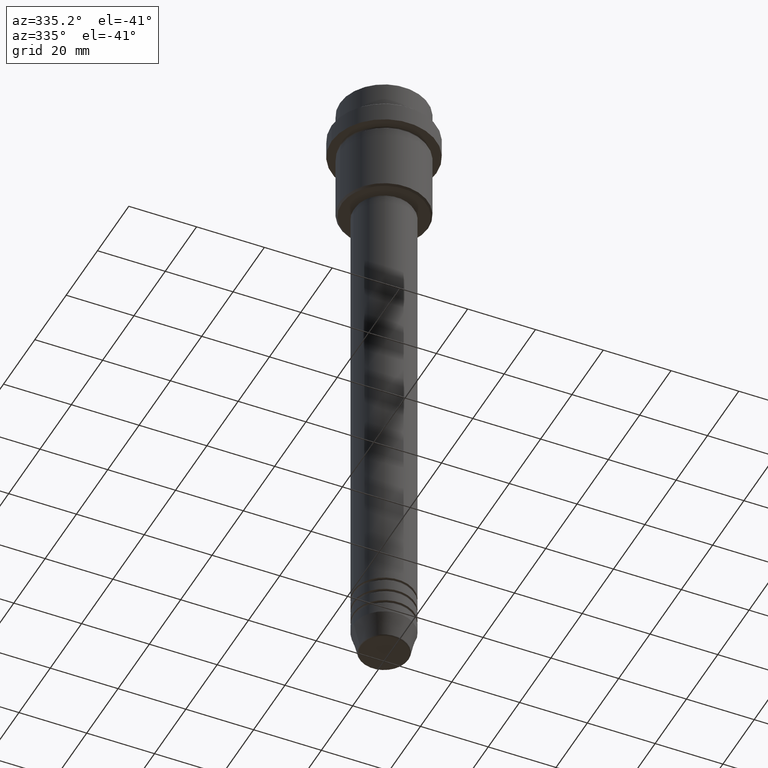
[diagram: clean part render]
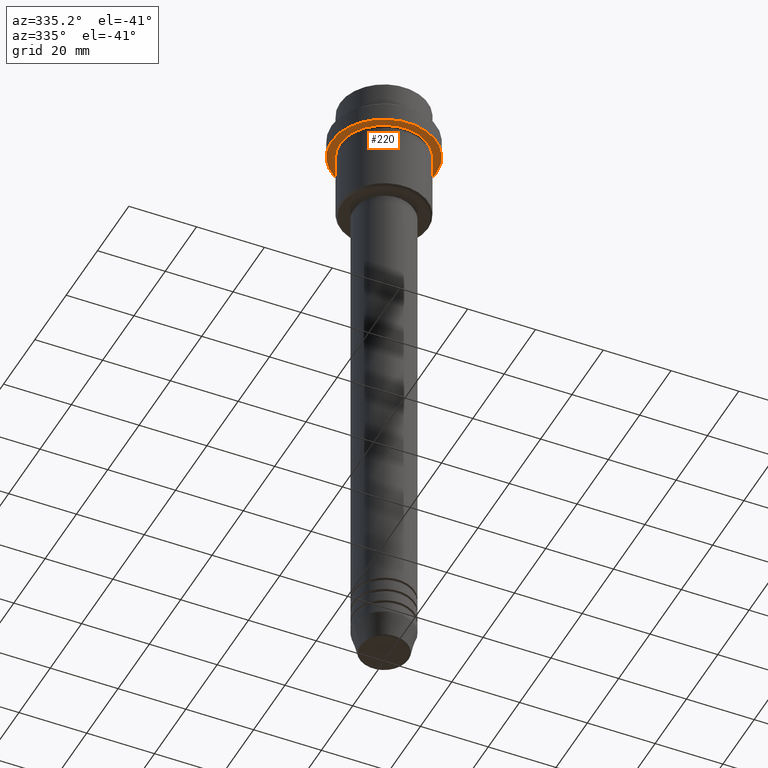
[diagram: same view with one face highlighted and labeled with its STEP entity id]
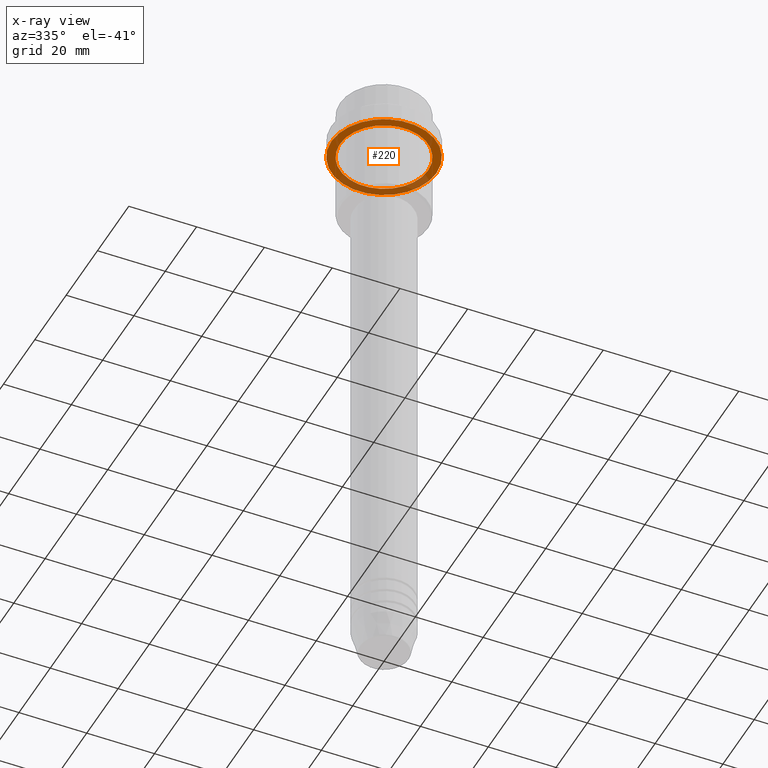
[diagram: x-ray of the same camera — body ghosted, the highlighted face saturated]
A machine part, auxiliary view. The second image highlights one B-rep face of the part: STEP entity #220.
The next image is the same camera in x-ray: the body ghosted, the highlighted face saturated — about 30% of this face is hidden behind the body in this view.
In plain terms, the highlighted planar face has unit normal (0, 0, -1).
Its self-contained STEP definition (entity closure, byte-faithful):
#28 = EDGE_CURVE ( 'NONE', #1111, #1268, #1344, .T. ) ;
#35 = DIRECTION ( 'NONE',  ( -1.000000000000000000, 0.000000000000000000, -0.000000000000000000 ) ) ;
#45 = PLANE ( 'NONE',  #155 ) ;
#73 = CARTESIAN_POINT ( 'NONE',  ( -15.50000000000000000, 1.898202538678397557E-15, -15.00000000000000178 ) ) ;
#84 = DIRECTION ( 'NONE',  ( -0.000000000000000000, -0.000000000000000000, 1.000000000000000000 ) ) ;
#134 = ORIENTED_EDGE ( 'NONE', *, *, #28, .F. ) ;
#138 = DIRECTION ( 'NONE',  ( 0.000000000000000000, 0.000000000000000000, -1.000000000000000000 ) ) ;
#155 = AXIS2_PLACEMENT_3D ( 'NONE', #788, #138, #35 ) ;
#194 = AXIS2_PLACEMENT_3D ( 'NONE', #605, #301, #737 ) ;
#220 = ADVANCED_FACE ( 'NONE', ( #383, #817 ), #45, .T. ) ;
#274 = EDGE_LOOP ( 'NONE', ( #887, #627 ) ) ;
#284 = CARTESIAN_POINT ( 'NONE',  ( 0.000000000000000000, 0.000000000000000000, -15.00000000000000000 ) ) ;
#301 = DIRECTION ( 'NONE',  ( -0.000000000000000000, -0.000000000000000000, 1.000000000000000000 ) ) ;
#383 = FACE_BOUND ( 'NONE', #274, .T. ) ;
#391 = AXIS2_PLACEMENT_3D ( 'NONE', #1053, #84, #502 ) ;
#448 = EDGE_CURVE ( 'NONE', #1342, #1324, #1293, .T. ) ;
#502 = DIRECTION ( 'NONE',  ( -1.000000000000000000, 0.000000000000000000, 0.000000000000000000 ) ) ;
#555 = CARTESIAN_POINT ( 'NONE',  ( 15.50000000000000000, 0.000000000000000000, -15.00000000000000178 ) ) ;
#574 = DIRECTION ( 'NONE',  ( 1.000000000000000000, 0.000000000000000000, 0.000000000000000000 ) ) ;
#605 = CARTESIAN_POINT ( 'NONE',  ( 0.000000000000000000, 0.000000000000000000, -15.00000000000000178 ) ) ;
#620 = ORIENTED_EDGE ( 'NONE', *, *, #721, .F. ) ;
#627 = ORIENTED_EDGE ( 'NONE', *, *, #1401, .T. ) ;
#674 = DIRECTION ( 'NONE',  ( -0.000000000000000000, -0.000000000000000000, 1.000000000000000000 ) ) ;
#721 = EDGE_CURVE ( 'NONE', #1268, #1111, #1130, .T. ) ;
#737 = DIRECTION ( 'NONE',  ( 1.000000000000000000, 0.000000000000000000, 0.000000000000000000 ) ) ;
#788 = CARTESIAN_POINT ( 'NONE',  ( 0.000000000000000000, 15.50000000000000000, -15.00000000000000000 ) ) ;
#803 = DIRECTION ( 'NONE',  ( -1.000000000000000000, 0.000000000000000000, 0.000000000000000000 ) ) ;
#817 = FACE_OUTER_BOUND ( 'NONE', #1077, .T. ) ;
#840 = AXIS2_PLACEMENT_3D ( 'NONE', #1089, #674, #574 ) ;
#887 = ORIENTED_EDGE ( 'NONE', *, *, #448, .T. ) ;
#907 = DIRECTION ( 'NONE',  ( -0.000000000000000000, -0.000000000000000000, 1.000000000000000000 ) ) ;
#951 = AXIS2_PLACEMENT_3D ( 'NONE', #284, #907, #803 ) ;
#1053 = CARTESIAN_POINT ( 'NONE',  ( 0.000000000000000000, 0.000000000000000000, -15.00000000000000000 ) ) ;
#1077 = EDGE_LOOP ( 'NONE', ( #620, #134 ) ) ;
#1089 = CARTESIAN_POINT ( 'NONE',  ( 0.000000000000000000, 0.000000000000000000, -15.00000000000000178 ) ) ;
#1111 = VERTEX_POINT ( 'NONE', #73 ) ;
#1130 = CIRCLE ( 'NONE', #194, 15.50000000000000000 ) ;
#1217 = CARTESIAN_POINT ( 'NONE',  ( 12.99999999999999467, 1.592040838891558504E-15, -15.00000000000000000 ) ) ;
#1234 = CARTESIAN_POINT ( 'NONE',  ( -12.99999999999999467, 0.000000000000000000, -15.00000000000000000 ) ) ;
#1268 = VERTEX_POINT ( 'NONE', #555 ) ;
#1293 = CIRCLE ( 'NONE', #391, 12.99999999999999467 ) ;
#1315 = CIRCLE ( 'NONE', #951, 12.99999999999999467 ) ;
#1324 = VERTEX_POINT ( 'NONE', #1217 ) ;
#1342 = VERTEX_POINT ( 'NONE', #1234 ) ;
#1344 = CIRCLE ( 'NONE', #840, 15.50000000000000000 ) ;
#1401 = EDGE_CURVE ( 'NONE', #1324, #1342, #1315, .T. ) ;